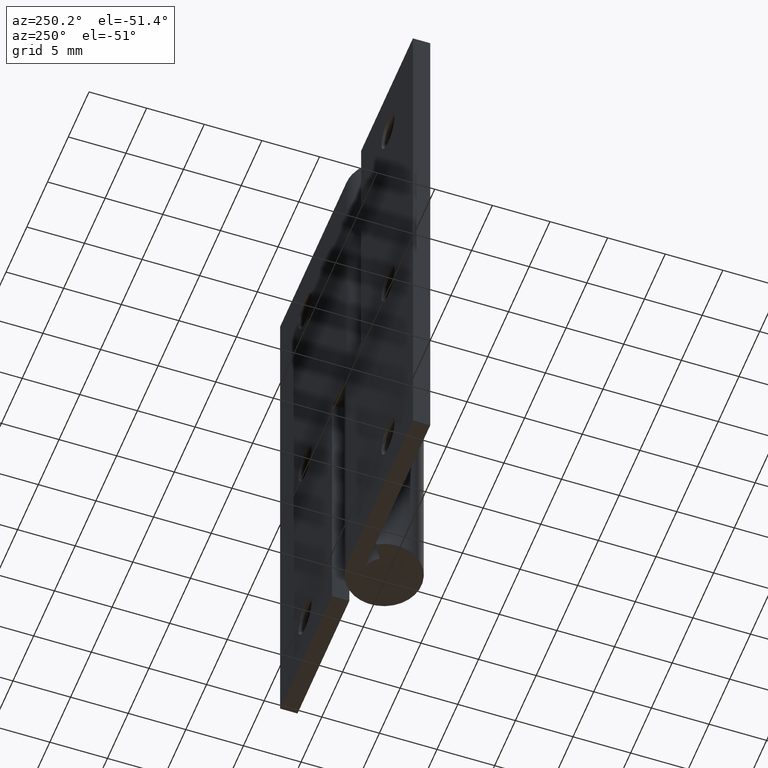
[diagram: clean part render]
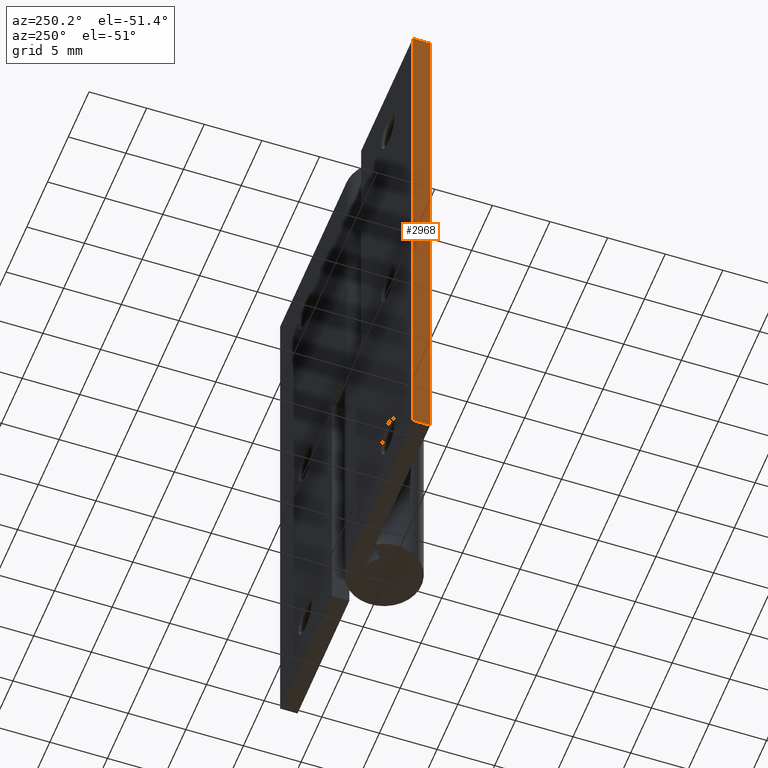
[diagram: same view with one face highlighted and labeled with its STEP entity id]
A machine part, auxiliary view. The second image highlights one B-rep face of the part: STEP entity #2968.
In plain terms, the highlighted face is a freeform B-spline surface patch.
Its self-contained STEP definition (entity closure, byte-faithful):
#2898=CARTESIAN_POINT('',(-16.0,1.750000000000000,0.0));
#2899=VERTEX_POINT('',#2898);
#2905=CARTESIAN_POINT('',(-16.0,3.250000000000000,0.0));
#2906=VERTEX_POINT('',#2905);
#2907=CARTESIAN_POINT('',(-16.0,3.250000000000000,0.0));
#2908=CARTESIAN_POINT('',(-16.0,1.750000000000000,0.0));
#2909=QUASI_UNIFORM_CURVE('',1,(#2907,#2908),.UNSPECIFIED.,.F.,.U.);
#2910=EDGE_CURVE('',#2906,#2899,#2909,.T.);
#2941=CARTESIAN_POINT('',(-16.0,1.675075002907291,-2.497499903090299));
#2942=CARTESIAN_POINT('',(-16.0,1.675075002907291,52.497501244194808));
#2943=CARTESIAN_POINT('',(-16.0,3.324925037325844,-2.497499903090299));
#2944=CARTESIAN_POINT('',(-16.0,3.324925037325844,52.497501244194808));
#2945=B_SPLINE_SURFACE_WITH_KNOTS('',1,1,((#2941,#2943),(#2942,#2944)),.UNSPECIFIED.,.F.,.F.,.U.,(2,2),(2,2),(0.0,54.995001147285109),(0.041708334948495,0.958291687403247),.UNSPECIFIED.);
#2946=CARTESIAN_POINT('',(-16.0,3.250000000000000,50.0));
#2947=VERTEX_POINT('',#2946);
#2948=CARTESIAN_POINT('',(-16.0,1.750000000000000,50.0));
#2949=VERTEX_POINT('',#2948);
#2950=CARTESIAN_POINT('',(-16.0,3.250000000000000,50.0));
#2951=CARTESIAN_POINT('',(-16.0,1.750000000000000,50.0));
#2952=QUASI_UNIFORM_CURVE('',1,(#2950,#2951),.UNSPECIFIED.,.F.,.U.);
#2953=EDGE_CURVE('',#2947,#2949,#2952,.T.);
#2954=ORIENTED_EDGE('',*,*,#2953,.F.);
#2955=CARTESIAN_POINT('',(-16.0,3.250000000000000,0.0));
#2956=CARTESIAN_POINT('',(-16.0,3.250000000000000,50.0));
#2957=QUASI_UNIFORM_CURVE('',1,(#2955,#2956),.UNSPECIFIED.,.F.,.U.);
#2958=EDGE_CURVE('',#2906,#2947,#2957,.T.);
#2959=ORIENTED_EDGE('',*,*,#2958,.F.);
#2960=ORIENTED_EDGE('',*,*,#2910,.T.);
#2961=CARTESIAN_POINT('',(-16.0,1.750000000000000,0.0));
#2962=CARTESIAN_POINT('',(-16.0,1.750000000000000,50.0));
#2963=QUASI_UNIFORM_CURVE('',1,(#2961,#2962),.UNSPECIFIED.,.F.,.U.);
#2964=EDGE_CURVE('',#2899,#2949,#2963,.T.);
#2965=ORIENTED_EDGE('',*,*,#2964,.T.);
#2966=EDGE_LOOP('',(#2954,#2959,#2960,#2965));
#2967=FACE_OUTER_BOUND('',#2966,.T.);
#2968=ADVANCED_FACE('',(#2967),#2945,.T.);